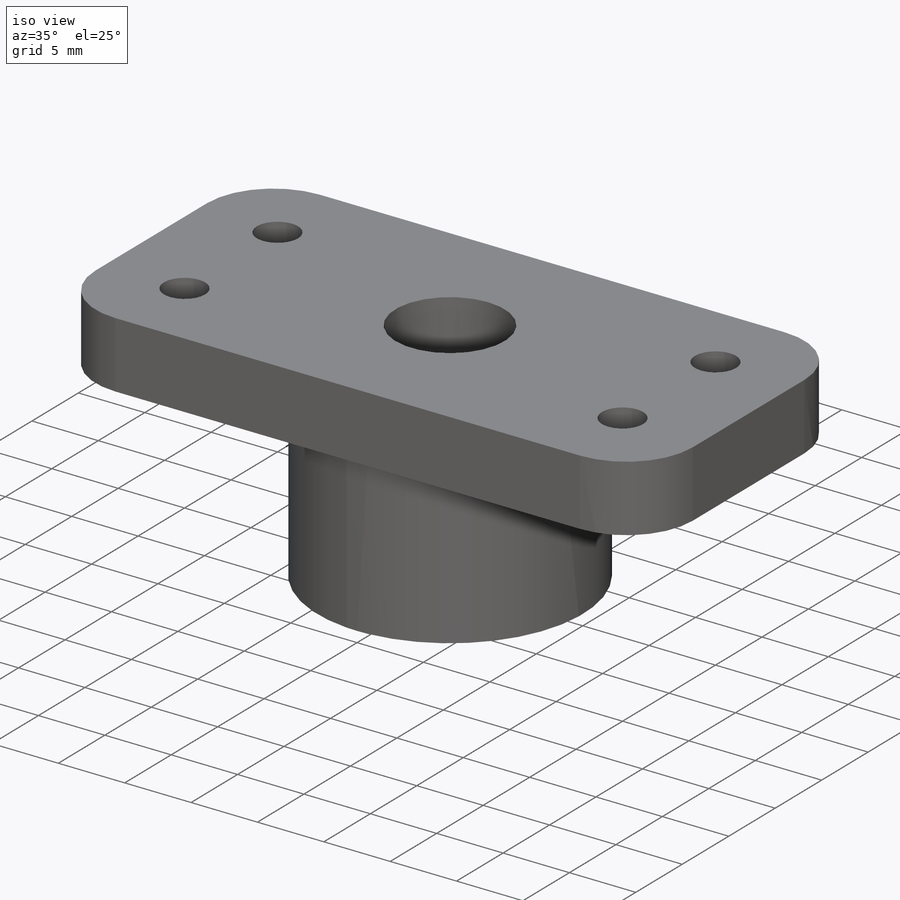
[diagram: iso view]
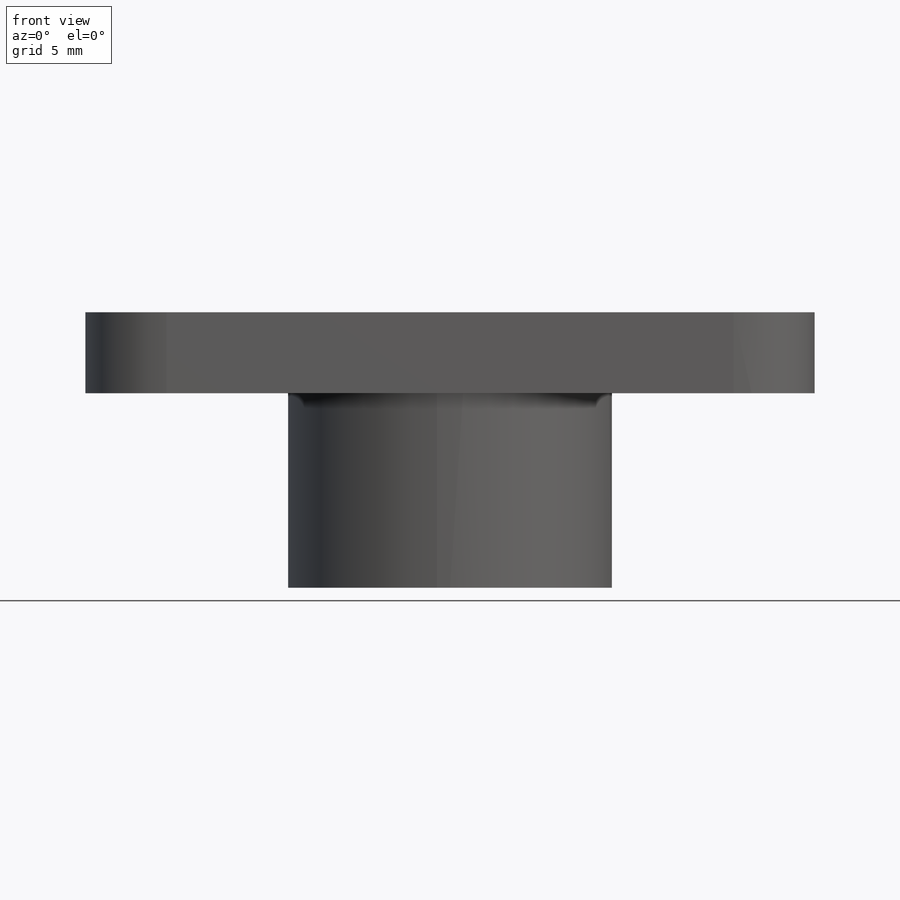
[diagram: front view]
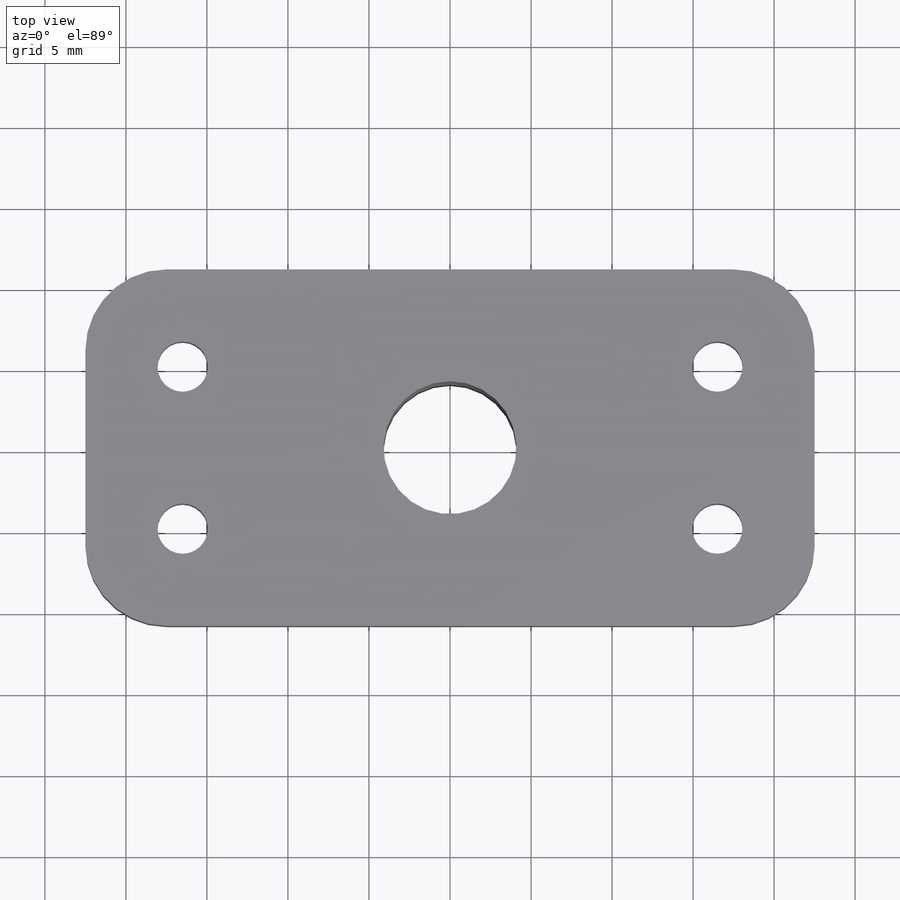
[diagram: top view]
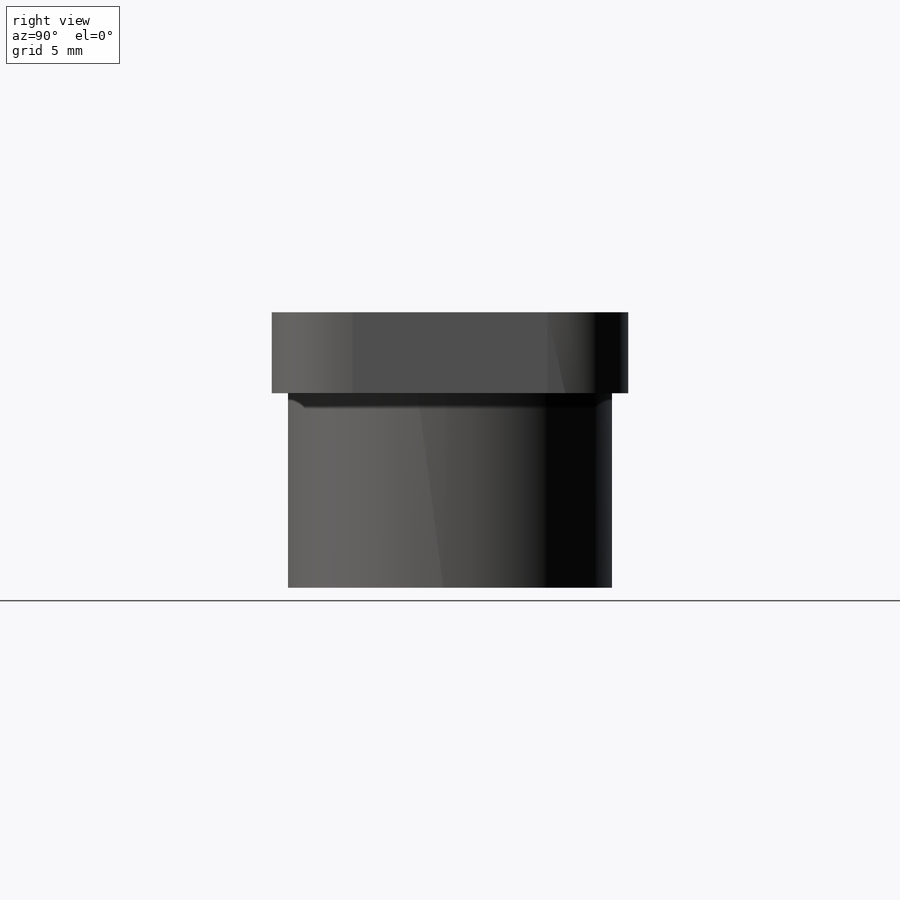
[diagram: right view]
SOLIDWORKS PART (.sldprt)
format: sldprt  version: not decoded by parser v0  size: 193,536 bytes
history: native  units: mm
features: sketch x4, fillet x4, plane x3, extrude x2, cut_extrude x2, material x1 (+10 scaffold rows collapsed)
feature tree (26):
  scaffold x10  (default folders/planes/origin — collapsed)
  material  "Material <sin especificar>"
  plane  "Alzado"
  plane  "Planta"
  plane  "Vista lateral"
  sketch  "Croquis1"  dims[D1=20.0mm D2=7.0mm]
  extrude  "Extruir1"  Depth=12mm
  sketch  "Croquis2"  dims[D1=45.0mm D2=22.0mm]
  extrude  "Saliente-Extruir1"  Depth=5mm
  fillet  "Redondeo1"  Radius=5mm
  fillet  "Redondeo2"  Radius=5mm
  fillet  "Redondeo3"  Radius=5mm
  fillet  "Redondeo4"  Radius=5mm
  sketch  "Croquis3"  dims[D1=8.2mm]
  cut_extrude  "Cortar-Extruir1"  Depth=45mm
  sketch  "Croquis4"  dims[c1.D1=3.0mm c1.D2=~7.148454mm c2.D1=3.1mm c2.D2=3.1mm c2.D3=3.1mm c2.D4=3.1mm c2.D9=3.1mm c3.D2=3.1mm c3.D5=10.0mm c3.D6=10.0mm c3.D7=6.0mm c3.D8=5.0mm c3.D9=6.0mm c4.D5=6.0mm c4.D8=6.0mm c4.D9=6.0mm c4.D10=6.0mm]
  cut_extrude  "Cortar-Extruir2"  Depth=45mm
decode coverage: 12 of 12 modeling features carry decoded parameters
note: ~ marks probable driven/reference dimensions
note: suppression state not decoded; provenance and decode notes live in map.json
